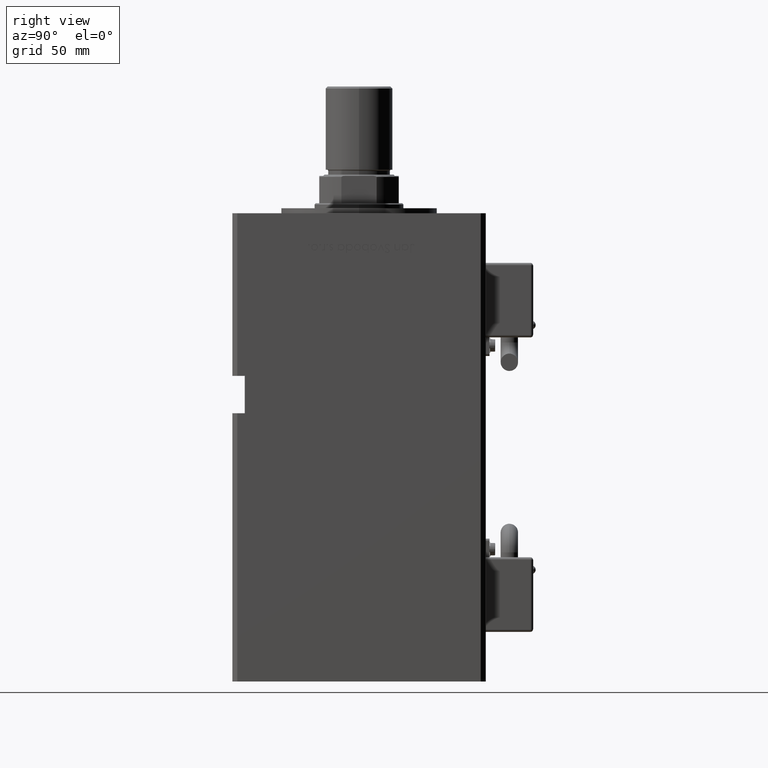
[diagram: clean part render]
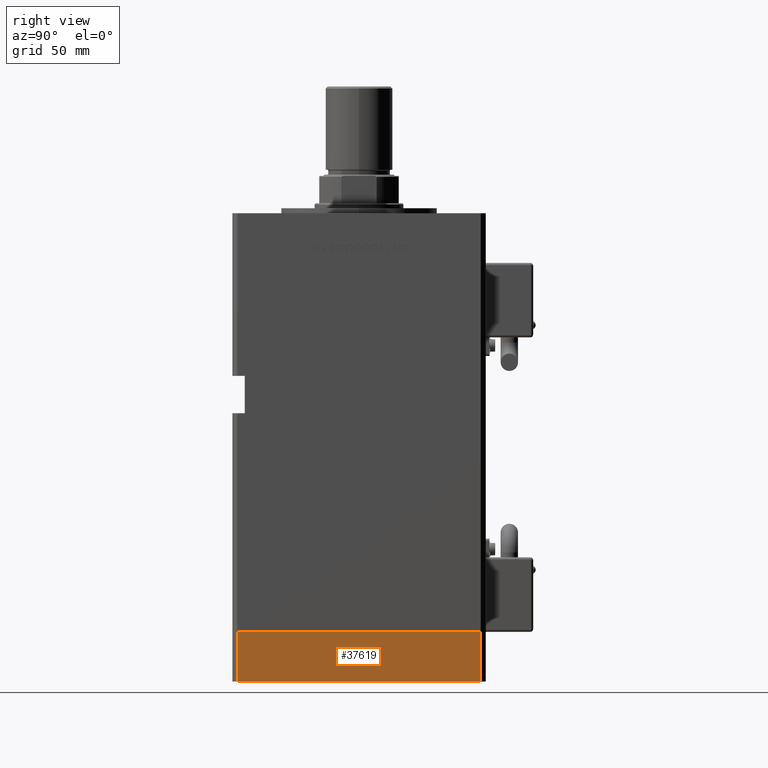
[diagram: same view with one face highlighted and labeled with its STEP entity id]
A machine part, right view. The second image highlights one B-rep face of the part: STEP entity #37619.
In plain terms, the highlighted planar face has unit normal (1, 0, 0).
Its self-contained STEP definition (entity closure, byte-faithful):
#873 = CARTESIAN_POINT ( 'NONE',  ( -60.00000000000000000, 48.99999999999995737, -20.00000000000000000 ) ) ;
#1107 = CARTESIAN_POINT ( 'NONE',  ( -60.00000000000000000, -49.00000000000000000, -20.00000000000000000 ) ) ;
#5594 = DIRECTION ( 'NONE',  ( 0.000000000000000000, 0.000000000000000000, 1.000000000000000000 ) ) ;
#5913 = FACE_OUTER_BOUND ( 'NONE', #28262, .T. ) ;
#7253 = DIRECTION ( 'NONE',  ( 0.000000000000000000, -1.000000000000000000, 0.000000000000000000 ) ) ;
#9640 = DIRECTION ( 'NONE',  ( 0.000000000000000000, 0.000000000000000000, 1.000000000000000000 ) ) ;
#9690 = EDGE_CURVE ( 'NONE', #36905, #49456, #25592, .T. ) ;
#9881 = CARTESIAN_POINT ( 'NONE',  ( -60.00000000000000000, -49.00000000000000000, -20.00000000000000000 ) ) ;
#11147 = VECTOR ( 'NONE', #5594, 1000.000000000000000 ) ;
#13945 = CARTESIAN_POINT ( 'NONE',  ( -60.00000000000000000, 48.99999999999995737, -20.00000000000000000 ) ) ;
#14853 = DIRECTION ( 'NONE',  ( 0.000000000000000000, -1.000000000000000000, 0.000000000000000000 ) ) ;
#14984 = AXIS2_PLACEMENT_3D ( 'NONE', #13945, #27397, #9640 ) ;
#17838 = EDGE_CURVE ( 'NONE', #27400, #51156, #53075, .T. ) ;
#18070 = CARTESIAN_POINT ( 'NONE',  ( -60.00000000000000000, 48.99999999999995737, 0.000000000000000000 ) ) ;
#25592 = LINE ( 'NONE', #34488, #32291 ) ;
#27145 = ORIENTED_EDGE ( 'NONE', *, *, #9690, .T. ) ;
#27397 = DIRECTION ( 'NONE',  ( -1.000000000000000000, 0.000000000000000000, 0.000000000000000000 ) ) ;
#27400 = VERTEX_POINT ( 'NONE', #40808 ) ;
#27560 = EDGE_CURVE ( 'NONE', #36905, #27400, #40169, .T. ) ;
#28262 = EDGE_LOOP ( 'NONE', ( #37740, #51553, #27145, #51314 ) ) ;
#31268 = DIRECTION ( 'NONE',  ( 0.000000000000000000, 0.000000000000000000, 1.000000000000000000 ) ) ;
#32143 = VECTOR ( 'NONE', #31268, 1000.000000000000000 ) ;
#32291 = VECTOR ( 'NONE', #7253, 1000.000000000000000 ) ;
#33584 = EDGE_CURVE ( 'NONE', #49456, #51156, #53501, .T. ) ;
#34255 = VECTOR ( 'NONE', #14853, 1000.000000000000000 ) ;
#34488 = CARTESIAN_POINT ( 'NONE',  ( -60.00000000000000000, 48.99999999999995737, -20.00000000000000000 ) ) ;
#36905 = VERTEX_POINT ( 'NONE', #54646 ) ;
#37619 = ADVANCED_FACE ( 'NONE', ( #5913 ), #44635, .T. ) ;
#37740 = ORIENTED_EDGE ( 'NONE', *, *, #17838, .F. ) ;
#40169 = LINE ( 'NONE', #873, #32143 ) ;
#40808 = CARTESIAN_POINT ( 'NONE',  ( -60.00000000000000000, 48.99999999999995737, 0.000000000000000000 ) ) ;
#44635 = PLANE ( 'NONE',  #14984 ) ;
#49456 = VERTEX_POINT ( 'NONE', #1107 ) ;
#51156 = VERTEX_POINT ( 'NONE', #53102 ) ;
#51314 = ORIENTED_EDGE ( 'NONE', *, *, #33584, .T. ) ;
#51553 = ORIENTED_EDGE ( 'NONE', *, *, #27560, .F. ) ;
#53075 = LINE ( 'NONE', #18070, #34255 ) ;
#53102 = CARTESIAN_POINT ( 'NONE',  ( -60.00000000000000000, -49.00000000000000000, 0.000000000000000000 ) ) ;
#53501 = LINE ( 'NONE', #9881, #11147 ) ;
#54646 = CARTESIAN_POINT ( 'NONE',  ( -60.00000000000000000, 48.99999999999995737, -20.00000000000000000 ) ) ;